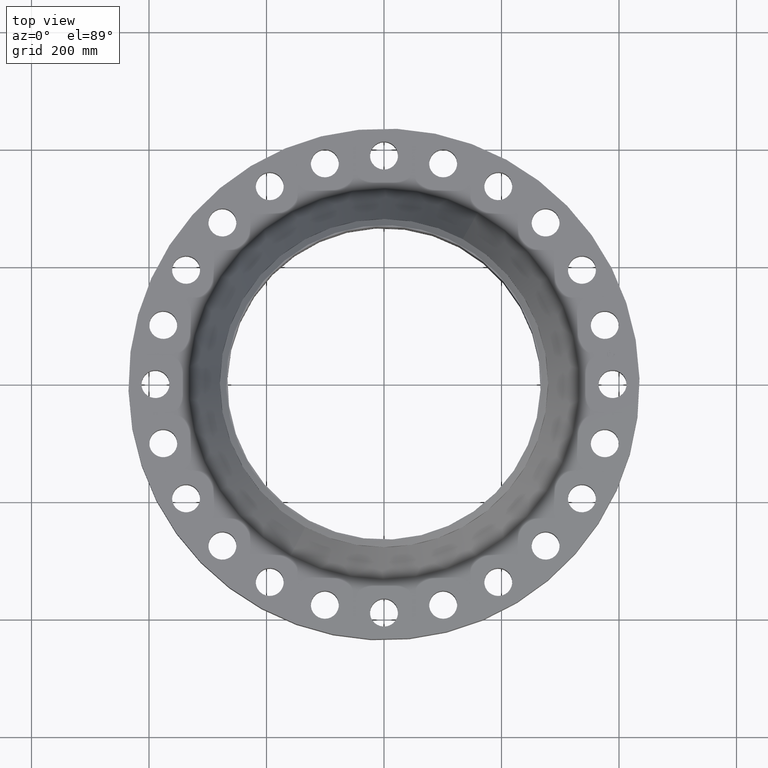
[diagram: clean part render]
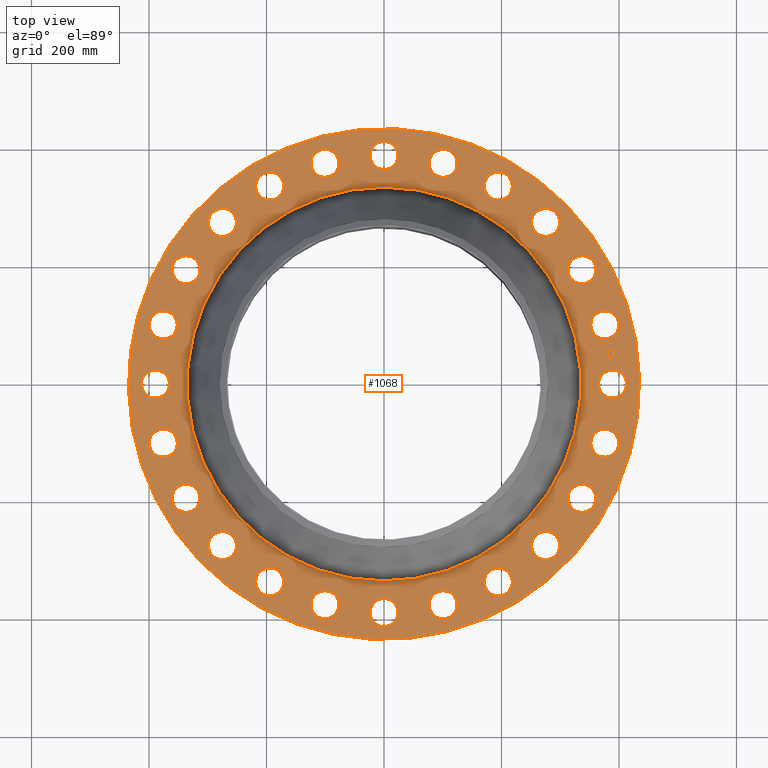
[diagram: same view with one face highlighted and labeled with its STEP entity id]
A machine part, top view. The second image highlights one B-rep face of the part: STEP entity #1068.
In plain terms, the highlighted planar face has unit normal (0, 0, -1).
Its self-contained STEP definition (entity closure, byte-faithful):
#107=AXIS2_PLACEMENT_3D('Circle Axis2P3D',#105,#106,$) ;
#594=AXIS2_PLACEMENT_3D('Plane Axis2P3D',#591,#592,#593) ;
#598=AXIS2_PLACEMENT_3D('Circle Axis2P3D',#596,#597,$) ;
#607=AXIS2_PLACEMENT_3D('Circle Axis2P3D',#605,#606,$) ;
#620=AXIS2_PLACEMENT_3D('Circle Axis2P3D',#618,#619,$) ;
#629=AXIS2_PLACEMENT_3D('Circle Axis2P3D',#627,#628,$) ;
#638=AXIS2_PLACEMENT_3D('Circle Axis2P3D',#636,#637,$) ;
#647=AXIS2_PLACEMENT_3D('Circle Axis2P3D',#645,#646,$) ;
#656=AXIS2_PLACEMENT_3D('Circle Axis2P3D',#654,#655,$) ;
#665=AXIS2_PLACEMENT_3D('Circle Axis2P3D',#663,#664,$) ;
#674=AXIS2_PLACEMENT_3D('Circle Axis2P3D',#672,#673,$) ;
#683=AXIS2_PLACEMENT_3D('Circle Axis2P3D',#681,#682,$) ;
#692=AXIS2_PLACEMENT_3D('Circle Axis2P3D',#690,#691,$) ;
#701=AXIS2_PLACEMENT_3D('Circle Axis2P3D',#699,#700,$) ;
#710=AXIS2_PLACEMENT_3D('Circle Axis2P3D',#708,#709,$) ;
#719=AXIS2_PLACEMENT_3D('Circle Axis2P3D',#717,#718,$) ;
#728=AXIS2_PLACEMENT_3D('Circle Axis2P3D',#726,#727,$) ;
#737=AXIS2_PLACEMENT_3D('Circle Axis2P3D',#735,#736,$) ;
#746=AXIS2_PLACEMENT_3D('Circle Axis2P3D',#744,#745,$) ;
#755=AXIS2_PLACEMENT_3D('Circle Axis2P3D',#753,#754,$) ;
#764=AXIS2_PLACEMENT_3D('Circle Axis2P3D',#762,#763,$) ;
#773=AXIS2_PLACEMENT_3D('Circle Axis2P3D',#771,#772,$) ;
#782=AXIS2_PLACEMENT_3D('Circle Axis2P3D',#780,#781,$) ;
#791=AXIS2_PLACEMENT_3D('Circle Axis2P3D',#789,#790,$) ;
#800=AXIS2_PLACEMENT_3D('Circle Axis2P3D',#798,#799,$) ;
#809=AXIS2_PLACEMENT_3D('Circle Axis2P3D',#807,#808,$) ;
#818=AXIS2_PLACEMENT_3D('Circle Axis2P3D',#816,#817,$) ;
#827=AXIS2_PLACEMENT_3D('Circle Axis2P3D',#825,#826,$) ;
#836=AXIS2_PLACEMENT_3D('Circle Axis2P3D',#834,#835,$) ;
#845=AXIS2_PLACEMENT_3D('Circle Axis2P3D',#843,#844,$) ;
#854=AXIS2_PLACEMENT_3D('Circle Axis2P3D',#852,#853,$) ;
#863=AXIS2_PLACEMENT_3D('Circle Axis2P3D',#861,#862,$) ;
#872=AXIS2_PLACEMENT_3D('Circle Axis2P3D',#870,#871,$) ;
#881=AXIS2_PLACEMENT_3D('Circle Axis2P3D',#879,#880,$) ;
#890=AXIS2_PLACEMENT_3D('Circle Axis2P3D',#888,#889,$) ;
#899=AXIS2_PLACEMENT_3D('Circle Axis2P3D',#897,#898,$) ;
#908=AXIS2_PLACEMENT_3D('Circle Axis2P3D',#906,#907,$) ;
#917=AXIS2_PLACEMENT_3D('Circle Axis2P3D',#915,#916,$) ;
#926=AXIS2_PLACEMENT_3D('Circle Axis2P3D',#924,#925,$) ;
#935=AXIS2_PLACEMENT_3D('Circle Axis2P3D',#933,#934,$) ;
#944=AXIS2_PLACEMENT_3D('Circle Axis2P3D',#942,#943,$) ;
#953=AXIS2_PLACEMENT_3D('Circle Axis2P3D',#951,#952,$) ;
#962=AXIS2_PLACEMENT_3D('Circle Axis2P3D',#960,#961,$) ;
#971=AXIS2_PLACEMENT_3D('Circle Axis2P3D',#969,#970,$) ;
#980=AXIS2_PLACEMENT_3D('Circle Axis2P3D',#978,#979,$) ;
#989=AXIS2_PLACEMENT_3D('Circle Axis2P3D',#987,#988,$) ;
#998=AXIS2_PLACEMENT_3D('Circle Axis2P3D',#996,#997,$) ;
#1007=AXIS2_PLACEMENT_3D('Circle Axis2P3D',#1005,#1006,$) ;
#1016=AXIS2_PLACEMENT_3D('Circle Axis2P3D',#1014,#1015,$) ;
#1025=AXIS2_PLACEMENT_3D('Circle Axis2P3D',#1023,#1024,$) ;
#1034=AXIS2_PLACEMENT_3D('Circle Axis2P3D',#1032,#1033,$) ;
#1043=AXIS2_PLACEMENT_3D('Circle Axis2P3D',#1041,#1042,$) ;
#1052=AXIS2_PLACEMENT_3D('Circle Axis2P3D',#1050,#1051,$) ;
#1061=AXIS2_PLACEMENT_3D('Circle Axis2P3D',#1059,#1060,$) ;
#46=CARTESIAN_POINT('Vertex',(14.4900723919,0.45066000629,3.75)) ;
#60=CARTESIAN_POINT('Vertex',(16.1399276082,-0.450660006329,3.75000000002)) ;
#64=CARTESIAN_POINT('Control Point',(14.4900723919,0.45066000629,3.75000000002)) ;
#65=CARTESIAN_POINT('Control Point',(14.5608619002,0.58023933197,3.75000000002)) ;
#66=CARTESIAN_POINT('Control Point',(14.6570942495,0.695919170208,3.75000000002)) ;
#67=CARTESIAN_POINT('Control Point',(14.7751509021,0.791016067752,3.75000000002)) ;
#68=CARTESIAN_POINT('Control Point',(15.0421904572,0.92979587949,3.75000000001)) ;
#69=CARTESIAN_POINT('Control Point',(15.3418795469,0.957298782026,3.75000000001)) ;
#70=CARTESIAN_POINT('Control Point',(15.4926018676,0.941063783582,3.75000000001)) ;
#71=CARTESIAN_POINT('Control Point',(15.7795594938,0.850370449281,3.75000000001)) ;
#72=CARTESIAN_POINT('Control Point',(16.0109191703,0.657905750577,3.75000000001)) ;
#73=CARTESIAN_POINT('Control Point',(16.1060160679,0.539849098048,3.75000000001)) ;
#74=CARTESIAN_POINT('Control Point',(16.2447958796,0.272809542925,3.75)) ;
#75=CARTESIAN_POINT('Control Point',(16.2722987821,-0.0268795467977,3.75)) ;
#76=CARTESIAN_POINT('Control Point',(16.2560637837,-0.177601867488,3.75)) ;
#77=CARTESIAN_POINT('Control Point',(16.2107171165,-0.32108068061,3.75)) ;
#78=CARTESIAN_POINT('Control Point',(16.1399276083,-0.45066000629,3.75)) ;
#105=CARTESIAN_POINT('Axis2P3D Location',(15.3150000001,0.,3.75)) ;
#591=CARTESIAN_POINT('Axis2P3D Location',(0.,17.1250000001,3.75000000002)) ;
#596=CARTESIAN_POINT('Axis2P3D Location',(1.28188623321E-011,-2.32744707147E-012,3.75000000002)) ;
#600=CARTESIAN_POINT('Vertex',(8.21016234865,15.0286013725,3.74999999999)) ;
#602=CARTESIAN_POINT('Vertex',(-8.21016234865,-15.0286013725,3.74999999999)) ;
#605=CARTESIAN_POINT('Axis2P3D Location',(-1.28188623321E-011,1.16640905158E-011,3.75000000002)) ;
#618=CARTESIAN_POINT('Axis2P3D Location',(-1.28099106126E-011,1.16685663756E-011,3.75000000002)) ;
#622=CARTESIAN_POINT('Vertex',(-6.32454671418,-11.5770051058,3.75000000002)) ;
#624=CARTESIAN_POINT('Vertex',(6.32454671423,11.5770051058,3.75000000002)) ;
#627=CARTESIAN_POINT('Axis2P3D Location',(1.28099106126E-011,-2.33192293122E-012,3.75000000002)) ;
#636=CARTESIAN_POINT('Axis2P3D Location',(14.7931540297,-3.96381367577,3.75000000002)) ;
#640=CARTESIAN_POINT('Vertex',(15.4733335187,-4.61262479054,3.75000000002)) ;
#642=CARTESIAN_POINT('Vertex',(14.1129745406,-3.31500256098,3.75)) ;
#645=CARTESIAN_POINT('Axis2P3D Location',(14.7931540297,-3.96381367573,3.75000000002)) ;
#654=CARTESIAN_POINT('Axis2P3D Location',(13.263179059,-7.65750000004,3.75000000002)) ;
#658=CARTESIAN_POINT('Vertex',(13.7522573208,-8.46024681804,3.75)) ;
#660=CARTESIAN_POINT('Vertex',(12.7741007972,-6.85475318202,3.75)) ;
#663=CARTESIAN_POINT('Axis2P3D Location',(13.263179059,-7.65750000004,3.75000000002)) ;
#672=CARTESIAN_POINT('Axis2P3D Location',(10.8293403539,-10.8293403539,3.75000000002)) ;
#676=CARTESIAN_POINT('Vertex',(11.0939875132,-11.7313170061,3.75000000002)) ;
#678=CARTESIAN_POINT('Vertex',(10.5646931946,-9.92736370171,3.75)) ;
#681=CARTESIAN_POINT('Axis2P3D Location',(10.8293403539,-10.8293403539,3.75000000002)) ;
#690=CARTESIAN_POINT('Axis2P3D Location',(7.6575,-13.263179059,3.75000000002)) ;
#694=CARTESIAN_POINT('Vertex',(7.6796807902,-14.2029173271,3.75)) ;
#696=CARTESIAN_POINT('Vertex',(7.63531920986,-12.3234407909,3.75)) ;
#699=CARTESIAN_POINT('Axis2P3D Location',(7.6575,-13.263179059,3.75000000002)) ;
#708=CARTESIAN_POINT('Axis2P3D Location',(3.96381367582,-14.7931540297,3.75000000002)) ;
#712=CARTESIAN_POINT('Vertex',(3.74201651259,-15.7066123038,3.75000000002)) ;
#714=CARTESIAN_POINT('Vertex',(4.18561083888,-13.8796957556,3.75)) ;
#717=CARTESIAN_POINT('Axis2P3D Location',(3.96381367574,-14.7931540297,3.75000000002)) ;
#726=CARTESIAN_POINT('Axis2P3D Location',(4.36655086542E-011,-15.3150000001,3.75000000002)) ;
#730=CARTESIAN_POINT('Vertex',(-0.450660006297,-16.1399276083,3.75000000002)) ;
#732=CARTESIAN_POINT('Vertex',(0.45066000629,-14.4900723919,3.75)) ;
#735=CARTESIAN_POINT('Axis2P3D Location',(-1.281158906E-011,-15.3150000001,3.75000000002)) ;
#744=CARTESIAN_POINT('Axis2P3D Location',(-3.96381367574,-14.7931540297,3.75000000002)) ;
#748=CARTESIAN_POINT('Vertex',(-4.61262479058,-15.4733335187,3.75000000002)) ;
#750=CARTESIAN_POINT('Vertex',(-3.31500256098,-14.1129745406,3.75)) ;
#753=CARTESIAN_POINT('Axis2P3D Location',(-3.96381367577,-14.7931540297,3.75000000002)) ;
#762=CARTESIAN_POINT('Axis2P3D Location',(-7.65750000004,-13.263179059,3.75000000002)) ;
#766=CARTESIAN_POINT('Vertex',(-8.46024681804,-13.7522573208,3.75)) ;
#768=CARTESIAN_POINT('Vertex',(-6.85475318202,-12.7741007972,3.75)) ;
#771=CARTESIAN_POINT('Axis2P3D Location',(-7.65750000004,-13.263179059,3.75000000002)) ;
#780=CARTESIAN_POINT('Axis2P3D Location',(-10.8293403539,-10.8293403539,3.75000000002)) ;
#784=CARTESIAN_POINT('Vertex',(-11.7313170061,-11.0939875132,3.75000000002)) ;
#786=CARTESIAN_POINT('Vertex',(-9.92736370171,-10.5646931946,3.75)) ;
#789=CARTESIAN_POINT('Axis2P3D Location',(-10.8293403539,-10.8293403539,3.75000000002)) ;
#798=CARTESIAN_POINT('Axis2P3D Location',(-13.263179059,-7.65750000004,3.75000000002)) ;
#802=CARTESIAN_POINT('Vertex',(-14.2029173271,-7.6796807902,3.75)) ;
#804=CARTESIAN_POINT('Vertex',(-12.3234407909,-7.63531920986,3.75)) ;
#807=CARTESIAN_POINT('Axis2P3D Location',(-13.263179059,-7.65750000004,3.75000000002)) ;
#816=CARTESIAN_POINT('Axis2P3D Location',(-14.7931540297,-3.96381367573,3.75000000002)) ;
#820=CARTESIAN_POINT('Vertex',(-15.7066123037,-3.74201651262,3.75000000002)) ;
#822=CARTESIAN_POINT('Vertex',(-13.8796957556,-4.18561083888,3.75)) ;
#825=CARTESIAN_POINT('Axis2P3D Location',(-14.7931540297,-3.9638136758,3.75000000002)) ;
#834=CARTESIAN_POINT('Axis2P3D Location',(-15.3150000001,4.13345648173E-011,3.75000000002)) ;
#838=CARTESIAN_POINT('Vertex',(-16.1399276082,0.450660006338,3.75000000002)) ;
#840=CARTESIAN_POINT('Vertex',(-14.4900723919,-0.45066000629,3.75)) ;
#843=CARTESIAN_POINT('Axis2P3D Location',(-15.3150000001,-1.51418335438E-011,3.75000000002)) ;
#852=CARTESIAN_POINT('Axis2P3D Location',(-14.7931540297,3.96381367578,3.75000000002)) ;
#856=CARTESIAN_POINT('Vertex',(-15.4733335187,4.61262479055,3.75000000002)) ;
#858=CARTESIAN_POINT('Vertex',(-14.1129745406,3.31500256098,3.75)) ;
#861=CARTESIAN_POINT('Axis2P3D Location',(-14.7931540297,3.96381367574,3.75000000002)) ;
#870=CARTESIAN_POINT('Axis2P3D Location',(-13.263179059,7.6575,3.75000000002)) ;
#874=CARTESIAN_POINT('Vertex',(-13.7522573208,8.46024681804,3.75)) ;
#876=CARTESIAN_POINT('Vertex',(-12.7741007972,6.85475318202,3.75)) ;
#879=CARTESIAN_POINT('Axis2P3D Location',(-13.263179059,7.65750000003,3.75000000002)) ;
#888=CARTESIAN_POINT('Axis2P3D Location',(-10.8293403539,10.8293403539,3.75000000002)) ;
#892=CARTESIAN_POINT('Vertex',(-11.0939875132,11.7313170061,3.75000000002)) ;
#894=CARTESIAN_POINT('Vertex',(-10.5646931946,9.92736370171,3.75)) ;
#897=CARTESIAN_POINT('Axis2P3D Location',(-10.8293403539,10.8293403539,3.75000000002)) ;
#906=CARTESIAN_POINT('Axis2P3D Location',(-7.6575,13.263179059,3.75000000002)) ;
#910=CARTESIAN_POINT('Vertex',(-7.6796807902,14.2029173271,3.75)) ;
#912=CARTESIAN_POINT('Vertex',(-7.63531920986,12.3234407909,3.75)) ;
#915=CARTESIAN_POINT('Axis2P3D Location',(-7.6575,13.263179059,3.75000000002)) ;
#924=CARTESIAN_POINT('Axis2P3D Location',(-3.96381367581,14.7931540297,3.75000000002)) ;
#928=CARTESIAN_POINT('Vertex',(-3.74201651259,15.7066123038,3.75000000002)) ;
#930=CARTESIAN_POINT('Vertex',(-4.18561083888,13.8796957556,3.75)) ;
#933=CARTESIAN_POINT('Axis2P3D Location',(-3.96381367574,14.7931540297,3.75000000002)) ;
#942=CARTESIAN_POINT('Axis2P3D Location',(-4.36655086542E-011,15.3150000001,3.75000000002)) ;
#946=CARTESIAN_POINT('Vertex',(0.450660006297,16.1399276083,3.75000000002)) ;
#948=CARTESIAN_POINT('Vertex',(-0.45066000629,14.4900723919,3.75)) ;
#951=CARTESIAN_POINT('Axis2P3D Location',(1.281158906E-011,15.3150000001,3.75000000002)) ;
#960=CARTESIAN_POINT('Axis2P3D Location',(3.96381367574,14.7931540297,3.75000000002)) ;
#964=CARTESIAN_POINT('Vertex',(4.61262479058,15.4733335188,3.75000000002)) ;
#966=CARTESIAN_POINT('Vertex',(3.31500256098,14.1129745406,3.75)) ;
#969=CARTESIAN_POINT('Axis2P3D Location',(3.96381367577,14.7931540297,3.75000000002)) ;
#978=CARTESIAN_POINT('Axis2P3D Location',(7.65750000004,13.263179059,3.75000000002)) ;
#982=CARTESIAN_POINT('Vertex',(8.46024681804,13.7522573208,3.75)) ;
#984=CARTESIAN_POINT('Vertex',(6.85475318202,12.7741007972,3.75)) ;
#987=CARTESIAN_POINT('Axis2P3D Location',(7.65750000004,13.263179059,3.75000000002)) ;
#996=CARTESIAN_POINT('Axis2P3D Location',(10.8293403539,10.8293403539,3.75000000002)) ;
#1000=CARTESIAN_POINT('Vertex',(11.7313170061,11.0939875132,3.75000000002)) ;
#1002=CARTESIAN_POINT('Vertex',(9.92736370171,10.5646931946,3.75)) ;
#1005=CARTESIAN_POINT('Axis2P3D Location',(10.8293403539,10.8293403539,3.75000000002)) ;
#1014=CARTESIAN_POINT('Axis2P3D Location',(13.263179059,7.65750000004,3.75000000002)) ;
#1018=CARTESIAN_POINT('Vertex',(14.2029173271,7.6796807902,3.75)) ;
#1020=CARTESIAN_POINT('Vertex',(12.3234407909,7.63531920986,3.75)) ;
#1023=CARTESIAN_POINT('Axis2P3D Location',(13.263179059,7.65750000004,3.75000000002)) ;
#1032=CARTESIAN_POINT('Axis2P3D Location',(14.7931540297,3.96381367574,3.75000000002)) ;
#1036=CARTESIAN_POINT('Vertex',(15.7066123037,3.74201651263,3.75000000002)) ;
#1038=CARTESIAN_POINT('Vertex',(13.8796957556,4.18561083888,3.75)) ;
#1041=CARTESIAN_POINT('Axis2P3D Location',(14.7931540297,3.96381367581,3.75000000002)) ;
#1050=CARTESIAN_POINT('Axis2P3D Location',(15.183978052,1.99900863388,3.75000000002)) ;
#1054=CARTESIAN_POINT('Vertex',(15.1516728194,2.24439123708,3.75000000002)) ;
#1056=CARTESIAN_POINT('Vertex',(15.2162832846,1.75362603068,3.75000000002)) ;
#1059=CARTESIAN_POINT('Axis2P3D Location',(15.183978052,1.99900863388,3.75000000002)) ;
#106=DIRECTION('Axis2P3D Direction',(0.,-0.,-0.0393700787402)) ;
#592=DIRECTION('Axis2P3D Direction',(0.,0.,-0.0393700787402)) ;
#593=DIRECTION('Axis2P3D XDirection',(0.0393700787402,0.,0.)) ;
#597=DIRECTION('Axis2P3D Direction',(0.,0.,-0.0393700787402)) ;
#606=DIRECTION('Axis2P3D Direction',(0.,0.,-0.0393700787402)) ;
#619=DIRECTION('Axis2P3D Direction',(0.,0.,-0.0393700787402)) ;
#628=DIRECTION('Axis2P3D Direction',(0.,0.,-0.0393700787402)) ;
#637=DIRECTION('Axis2P3D Direction',(0.,0.,-0.0393700787402)) ;
#646=DIRECTION('Axis2P3D Direction',(0.,0.,-0.0393700787402)) ;
#655=DIRECTION('Axis2P3D Direction',(0.,0.,-0.0393700787402)) ;
#664=DIRECTION('Axis2P3D Direction',(0.,0.,-0.0393700787402)) ;
#673=DIRECTION('Axis2P3D Direction',(0.,0.,-0.0393700787402)) ;
#682=DIRECTION('Axis2P3D Direction',(0.,0.,-0.0393700787402)) ;
#691=DIRECTION('Axis2P3D Direction',(0.,0.,-0.0393700787402)) ;
#700=DIRECTION('Axis2P3D Direction',(0.,0.,-0.0393700787402)) ;
#709=DIRECTION('Axis2P3D Direction',(0.,0.,-0.0393700787402)) ;
#718=DIRECTION('Axis2P3D Direction',(0.,0.,-0.0393700787402)) ;
#727=DIRECTION('Axis2P3D Direction',(0.,0.,-0.0393700787402)) ;
#736=DIRECTION('Axis2P3D Direction',(0.,0.,-0.0393700787402)) ;
#745=DIRECTION('Axis2P3D Direction',(0.,0.,-0.0393700787402)) ;
#754=DIRECTION('Axis2P3D Direction',(0.,0.,-0.0393700787402)) ;
#763=DIRECTION('Axis2P3D Direction',(0.,0.,-0.0393700787402)) ;
#772=DIRECTION('Axis2P3D Direction',(0.,0.,-0.0393700787402)) ;
#781=DIRECTION('Axis2P3D Direction',(0.,0.,-0.0393700787402)) ;
#790=DIRECTION('Axis2P3D Direction',(0.,0.,-0.0393700787402)) ;
#799=DIRECTION('Axis2P3D Direction',(0.,0.,-0.0393700787402)) ;
#808=DIRECTION('Axis2P3D Direction',(0.,0.,-0.0393700787402)) ;
#817=DIRECTION('Axis2P3D Direction',(0.,0.,-0.0393700787402)) ;
#826=DIRECTION('Axis2P3D Direction',(0.,0.,-0.0393700787402)) ;
#835=DIRECTION('Axis2P3D Direction',(0.,0.,-0.0393700787402)) ;
#844=DIRECTION('Axis2P3D Direction',(0.,0.,-0.0393700787402)) ;
#853=DIRECTION('Axis2P3D Direction',(0.,0.,-0.0393700787402)) ;
#862=DIRECTION('Axis2P3D Direction',(0.,0.,-0.0393700787402)) ;
#871=DIRECTION('Axis2P3D Direction',(0.,0.,-0.0393700787402)) ;
#880=DIRECTION('Axis2P3D Direction',(0.,0.,-0.0393700787402)) ;
#889=DIRECTION('Axis2P3D Direction',(0.,0.,-0.0393700787402)) ;
#898=DIRECTION('Axis2P3D Direction',(0.,0.,-0.0393700787402)) ;
#907=DIRECTION('Axis2P3D Direction',(0.,0.,-0.0393700787402)) ;
#916=DIRECTION('Axis2P3D Direction',(0.,0.,-0.0393700787402)) ;
#925=DIRECTION('Axis2P3D Direction',(0.,0.,-0.0393700787402)) ;
#934=DIRECTION('Axis2P3D Direction',(0.,0.,-0.0393700787402)) ;
#943=DIRECTION('Axis2P3D Direction',(0.,0.,-0.0393700787402)) ;
#952=DIRECTION('Axis2P3D Direction',(0.,0.,-0.0393700787402)) ;
#961=DIRECTION('Axis2P3D Direction',(0.,0.,-0.0393700787402)) ;
#970=DIRECTION('Axis2P3D Direction',(0.,0.,-0.0393700787402)) ;
#979=DIRECTION('Axis2P3D Direction',(0.,0.,-0.0393700787402)) ;
#988=DIRECTION('Axis2P3D Direction',(0.,0.,-0.0393700787402)) ;
#997=DIRECTION('Axis2P3D Direction',(0.,0.,-0.0393700787402)) ;
#1006=DIRECTION('Axis2P3D Direction',(0.,0.,-0.0393700787402)) ;
#1015=DIRECTION('Axis2P3D Direction',(0.,0.,-0.0393700787402)) ;
#1024=DIRECTION('Axis2P3D Direction',(0.,0.,-0.0393700787402)) ;
#1033=DIRECTION('Axis2P3D Direction',(0.,0.,-0.0393700787402)) ;
#1042=DIRECTION('Axis2P3D Direction',(0.,0.,-0.0393700787402)) ;
#1051=DIRECTION('Axis2P3D Direction',(0.,0.,-0.0393700787402)) ;
#1060=DIRECTION('Axis2P3D Direction',(0.,0.,-0.0393700787402)) ;
#611=ORIENTED_EDGE('',*,*,#604,.F.) ;
#612=ORIENTED_EDGE('',*,*,#609,.F.) ;
#615=ORIENTED_EDGE('',*,*,#79,.T.) ;
#616=ORIENTED_EDGE('',*,*,#109,.T.) ;
#633=ORIENTED_EDGE('',*,*,#626,.T.) ;
#634=ORIENTED_EDGE('',*,*,#631,.T.) ;
#651=ORIENTED_EDGE('',*,*,#644,.T.) ;
#652=ORIENTED_EDGE('',*,*,#649,.T.) ;
#669=ORIENTED_EDGE('',*,*,#662,.T.) ;
#670=ORIENTED_EDGE('',*,*,#667,.T.) ;
#687=ORIENTED_EDGE('',*,*,#680,.T.) ;
#688=ORIENTED_EDGE('',*,*,#685,.T.) ;
#705=ORIENTED_EDGE('',*,*,#698,.T.) ;
#706=ORIENTED_EDGE('',*,*,#703,.T.) ;
#723=ORIENTED_EDGE('',*,*,#716,.T.) ;
#724=ORIENTED_EDGE('',*,*,#721,.T.) ;
#741=ORIENTED_EDGE('',*,*,#734,.T.) ;
#742=ORIENTED_EDGE('',*,*,#739,.T.) ;
#759=ORIENTED_EDGE('',*,*,#752,.T.) ;
#760=ORIENTED_EDGE('',*,*,#757,.T.) ;
#777=ORIENTED_EDGE('',*,*,#770,.T.) ;
#778=ORIENTED_EDGE('',*,*,#775,.T.) ;
#795=ORIENTED_EDGE('',*,*,#788,.T.) ;
#796=ORIENTED_EDGE('',*,*,#793,.T.) ;
#813=ORIENTED_EDGE('',*,*,#806,.T.) ;
#814=ORIENTED_EDGE('',*,*,#811,.T.) ;
#831=ORIENTED_EDGE('',*,*,#824,.T.) ;
#832=ORIENTED_EDGE('',*,*,#829,.T.) ;
#849=ORIENTED_EDGE('',*,*,#842,.T.) ;
#850=ORIENTED_EDGE('',*,*,#847,.T.) ;
#867=ORIENTED_EDGE('',*,*,#860,.T.) ;
#868=ORIENTED_EDGE('',*,*,#865,.T.) ;
#885=ORIENTED_EDGE('',*,*,#878,.T.) ;
#886=ORIENTED_EDGE('',*,*,#883,.T.) ;
#903=ORIENTED_EDGE('',*,*,#896,.T.) ;
#904=ORIENTED_EDGE('',*,*,#901,.T.) ;
#921=ORIENTED_EDGE('',*,*,#914,.T.) ;
#922=ORIENTED_EDGE('',*,*,#919,.T.) ;
#939=ORIENTED_EDGE('',*,*,#932,.T.) ;
#940=ORIENTED_EDGE('',*,*,#937,.T.) ;
#957=ORIENTED_EDGE('',*,*,#950,.T.) ;
#958=ORIENTED_EDGE('',*,*,#955,.T.) ;
#975=ORIENTED_EDGE('',*,*,#968,.T.) ;
#976=ORIENTED_EDGE('',*,*,#973,.T.) ;
#993=ORIENTED_EDGE('',*,*,#986,.T.) ;
#994=ORIENTED_EDGE('',*,*,#991,.T.) ;
#1011=ORIENTED_EDGE('',*,*,#1004,.T.) ;
#1012=ORIENTED_EDGE('',*,*,#1009,.T.) ;
#1029=ORIENTED_EDGE('',*,*,#1022,.T.) ;
#1030=ORIENTED_EDGE('',*,*,#1027,.T.) ;
#1047=ORIENTED_EDGE('',*,*,#1040,.T.) ;
#1048=ORIENTED_EDGE('',*,*,#1045,.T.) ;
#1065=ORIENTED_EDGE('',*,*,#1058,.T.) ;
#1066=ORIENTED_EDGE('',*,*,#1063,.T.) ;
#617=FACE_BOUND('',#614,.T.) ;
#635=FACE_BOUND('',#632,.T.) ;
#653=FACE_BOUND('',#650,.T.) ;
#671=FACE_BOUND('',#668,.T.) ;
#689=FACE_BOUND('',#686,.T.) ;
#707=FACE_BOUND('',#704,.T.) ;
#725=FACE_BOUND('',#722,.T.) ;
#743=FACE_BOUND('',#740,.T.) ;
#761=FACE_BOUND('',#758,.T.) ;
#779=FACE_BOUND('',#776,.T.) ;
#797=FACE_BOUND('',#794,.T.) ;
#815=FACE_BOUND('',#812,.T.) ;
#833=FACE_BOUND('',#830,.T.) ;
#851=FACE_BOUND('',#848,.T.) ;
#869=FACE_BOUND('',#866,.T.) ;
#887=FACE_BOUND('',#884,.T.) ;
#905=FACE_BOUND('',#902,.T.) ;
#923=FACE_BOUND('',#920,.T.) ;
#941=FACE_BOUND('',#938,.T.) ;
#959=FACE_BOUND('',#956,.T.) ;
#977=FACE_BOUND('',#974,.T.) ;
#995=FACE_BOUND('',#992,.T.) ;
#1013=FACE_BOUND('',#1010,.T.) ;
#1031=FACE_BOUND('',#1028,.T.) ;
#1049=FACE_BOUND('',#1046,.T.) ;
#1067=FACE_BOUND('',#1064,.T.) ;
#1068=ADVANCED_FACE('PartBody',(#613,#617,#635,#653,#671,#689,#707,#725,#743,#761,#779,#797,#815,#833,#851,#869,#887,#905,#923,#941,#959,#977,#995,#1013,#1031,#1049,#1067),#595,.F.) ;
#63=B_SPLINE_CURVE_WITH_KNOTS('',5,(#64,#65,#66,#67,#68,#69,#70,#71,#72,#73,#74,#75,#76,#77,#78),.UNSPECIFIED.,.F.,.U.,(6,3,3,3,6),(-37.5043330987,-18.7521665494,0.,18.7521665494,37.5043330987),.UNSPECIFIED.) ;
#108=CIRCLE('generated circle',#107,0.940000000004) ;
#599=CIRCLE('generated circle',#598,17.1250000001) ;
#608=CIRCLE('generated circle',#607,17.1250000001) ;
#621=CIRCLE('generated circle',#620,13.1919270146) ;
#630=CIRCLE('generated circle',#629,13.1919270146) ;
#639=CIRCLE('generated circle',#638,0.939999999996) ;
#648=CIRCLE('generated circle',#647,0.939999999996) ;
#657=CIRCLE('generated circle',#656,0.939999999987) ;
#666=CIRCLE('generated circle',#665,0.939999999987) ;
#675=CIRCLE('generated circle',#674,0.939999999994) ;
#684=CIRCLE('generated circle',#683,0.939999999994) ;
#693=CIRCLE('generated circle',#692,0.940000000005) ;
#702=CIRCLE('generated circle',#701,0.940000000005) ;
#711=CIRCLE('generated circle',#710,0.940000000023) ;
#720=CIRCLE('generated circle',#719,0.940000000023) ;
#729=CIRCLE('generated circle',#728,0.940000000015) ;
#738=CIRCLE('generated circle',#737,0.940000000015) ;
#747=CIRCLE('generated circle',#746,0.940000000021) ;
#756=CIRCLE('generated circle',#755,0.940000000021) ;
#765=CIRCLE('generated circle',#764,0.939999999999) ;
#774=CIRCLE('generated circle',#773,0.939999999999) ;
#783=CIRCLE('generated circle',#782,0.939999999994) ;
#792=CIRCLE('generated circle',#791,0.939999999994) ;
#801=CIRCLE('generated circle',#800,0.940000000005) ;
#810=CIRCLE('generated circle',#809,0.940000000005) ;
#819=CIRCLE('generated circle',#818,0.939999999979) ;
#828=CIRCLE('generated circle',#827,0.939999999979) ;
#837=CIRCLE('generated circle',#836,0.939999999983) ;
#846=CIRCLE('generated circle',#845,0.939999999983) ;
#855=CIRCLE('generated circle',#854,0.939999999996) ;
#864=CIRCLE('generated circle',#863,0.939999999996) ;
#873=CIRCLE('generated circle',#872,0.940000000018) ;
#882=CIRCLE('generated circle',#881,0.940000000018) ;
#891=CIRCLE('generated circle',#890,0.939999999994) ;
#900=CIRCLE('generated circle',#899,0.939999999994) ;
#909=CIRCLE('generated circle',#908,0.940000000005) ;
#918=CIRCLE('generated circle',#917,0.940000000005) ;
#927=CIRCLE('generated circle',#926,0.940000000023) ;
#936=CIRCLE('generated circle',#935,0.940000000023) ;
#945=CIRCLE('generated circle',#944,0.940000000015) ;
#954=CIRCLE('generated circle',#953,0.940000000015) ;
#963=CIRCLE('generated circle',#962,0.940000000021) ;
#972=CIRCLE('generated circle',#971,0.940000000021) ;
#981=CIRCLE('generated circle',#980,0.939999999999) ;
#990=CIRCLE('generated circle',#989,0.939999999999) ;
#999=CIRCLE('generated circle',#998,0.939999999994) ;
#1008=CIRCLE('generated circle',#1007,0.939999999994) ;
#1017=CIRCLE('generated circle',#1016,0.940000000005) ;
#1026=CIRCLE('generated circle',#1025,0.940000000005) ;
#1035=CIRCLE('generated circle',#1034,0.939999999979) ;
#1044=CIRCLE('generated circle',#1043,0.939999999979) ;
#1053=CIRCLE('generated circle',#1052,0.247500000012) ;
#1062=CIRCLE('generated circle',#1061,0.247500000012) ;
#79=EDGE_CURVE('',#47,#61,#63,.T.) ;
#109=EDGE_CURVE('',#61,#47,#108,.T.) ;
#604=EDGE_CURVE('',#601,#603,#599,.T.) ;
#609=EDGE_CURVE('',#603,#601,#608,.T.) ;
#626=EDGE_CURVE('',#623,#625,#621,.T.) ;
#631=EDGE_CURVE('',#625,#623,#630,.T.) ;
#644=EDGE_CURVE('',#641,#643,#639,.T.) ;
#649=EDGE_CURVE('',#643,#641,#648,.T.) ;
#662=EDGE_CURVE('',#659,#661,#657,.T.) ;
#667=EDGE_CURVE('',#661,#659,#666,.T.) ;
#680=EDGE_CURVE('',#677,#679,#675,.T.) ;
#685=EDGE_CURVE('',#679,#677,#684,.T.) ;
#698=EDGE_CURVE('',#695,#697,#693,.T.) ;
#703=EDGE_CURVE('',#697,#695,#702,.T.) ;
#716=EDGE_CURVE('',#713,#715,#711,.T.) ;
#721=EDGE_CURVE('',#715,#713,#720,.T.) ;
#734=EDGE_CURVE('',#731,#733,#729,.T.) ;
#739=EDGE_CURVE('',#733,#731,#738,.T.) ;
#752=EDGE_CURVE('',#749,#751,#747,.T.) ;
#757=EDGE_CURVE('',#751,#749,#756,.T.) ;
#770=EDGE_CURVE('',#767,#769,#765,.T.) ;
#775=EDGE_CURVE('',#769,#767,#774,.T.) ;
#788=EDGE_CURVE('',#785,#787,#783,.T.) ;
#793=EDGE_CURVE('',#787,#785,#792,.T.) ;
#806=EDGE_CURVE('',#803,#805,#801,.T.) ;
#811=EDGE_CURVE('',#805,#803,#810,.T.) ;
#824=EDGE_CURVE('',#821,#823,#819,.T.) ;
#829=EDGE_CURVE('',#823,#821,#828,.T.) ;
#842=EDGE_CURVE('',#839,#841,#837,.T.) ;
#847=EDGE_CURVE('',#841,#839,#846,.T.) ;
#860=EDGE_CURVE('',#857,#859,#855,.T.) ;
#865=EDGE_CURVE('',#859,#857,#864,.T.) ;
#878=EDGE_CURVE('',#875,#877,#873,.T.) ;
#883=EDGE_CURVE('',#877,#875,#882,.T.) ;
#896=EDGE_CURVE('',#893,#895,#891,.T.) ;
#901=EDGE_CURVE('',#895,#893,#900,.T.) ;
#914=EDGE_CURVE('',#911,#913,#909,.T.) ;
#919=EDGE_CURVE('',#913,#911,#918,.T.) ;
#932=EDGE_CURVE('',#929,#931,#927,.T.) ;
#937=EDGE_CURVE('',#931,#929,#936,.T.) ;
#950=EDGE_CURVE('',#947,#949,#945,.T.) ;
#955=EDGE_CURVE('',#949,#947,#954,.T.) ;
#968=EDGE_CURVE('',#965,#967,#963,.T.) ;
#973=EDGE_CURVE('',#967,#965,#972,.T.) ;
#986=EDGE_CURVE('',#983,#985,#981,.T.) ;
#991=EDGE_CURVE('',#985,#983,#990,.T.) ;
#1004=EDGE_CURVE('',#1001,#1003,#999,.T.) ;
#1009=EDGE_CURVE('',#1003,#1001,#1008,.T.) ;
#1022=EDGE_CURVE('',#1019,#1021,#1017,.T.) ;
#1027=EDGE_CURVE('',#1021,#1019,#1026,.T.) ;
#1040=EDGE_CURVE('',#1037,#1039,#1035,.T.) ;
#1045=EDGE_CURVE('',#1039,#1037,#1044,.T.) ;
#1058=EDGE_CURVE('',#1055,#1057,#1053,.T.) ;
#1063=EDGE_CURVE('',#1057,#1055,#1062,.T.) ;
#610=EDGE_LOOP('',(#611,#612)) ;
#614=EDGE_LOOP('',(#615,#616)) ;
#632=EDGE_LOOP('',(#633,#634)) ;
#650=EDGE_LOOP('',(#651,#652)) ;
#668=EDGE_LOOP('',(#669,#670)) ;
#686=EDGE_LOOP('',(#687,#688)) ;
#704=EDGE_LOOP('',(#705,#706)) ;
#722=EDGE_LOOP('',(#723,#724)) ;
#740=EDGE_LOOP('',(#741,#742)) ;
#758=EDGE_LOOP('',(#759,#760)) ;
#776=EDGE_LOOP('',(#777,#778)) ;
#794=EDGE_LOOP('',(#795,#796)) ;
#812=EDGE_LOOP('',(#813,#814)) ;
#830=EDGE_LOOP('',(#831,#832)) ;
#848=EDGE_LOOP('',(#849,#850)) ;
#866=EDGE_LOOP('',(#867,#868)) ;
#884=EDGE_LOOP('',(#885,#886)) ;
#902=EDGE_LOOP('',(#903,#904)) ;
#920=EDGE_LOOP('',(#921,#922)) ;
#938=EDGE_LOOP('',(#939,#940)) ;
#956=EDGE_LOOP('',(#957,#958)) ;
#974=EDGE_LOOP('',(#975,#976)) ;
#992=EDGE_LOOP('',(#993,#994)) ;
#1010=EDGE_LOOP('',(#1011,#1012)) ;
#1028=EDGE_LOOP('',(#1029,#1030)) ;
#1046=EDGE_LOOP('',(#1047,#1048)) ;
#1064=EDGE_LOOP('',(#1065,#1066)) ;
#613=FACE_OUTER_BOUND('',#610,.T.) ;
#595=PLANE('',#594) ;
#47=VERTEX_POINT('',#46) ;
#61=VERTEX_POINT('',#60) ;
#601=VERTEX_POINT('',#600) ;
#603=VERTEX_POINT('',#602) ;
#623=VERTEX_POINT('',#622) ;
#625=VERTEX_POINT('',#624) ;
#641=VERTEX_POINT('',#640) ;
#643=VERTEX_POINT('',#642) ;
#659=VERTEX_POINT('',#658) ;
#661=VERTEX_POINT('',#660) ;
#677=VERTEX_POINT('',#676) ;
#679=VERTEX_POINT('',#678) ;
#695=VERTEX_POINT('',#694) ;
#697=VERTEX_POINT('',#696) ;
#713=VERTEX_POINT('',#712) ;
#715=VERTEX_POINT('',#714) ;
#731=VERTEX_POINT('',#730) ;
#733=VERTEX_POINT('',#732) ;
#749=VERTEX_POINT('',#748) ;
#751=VERTEX_POINT('',#750) ;
#767=VERTEX_POINT('',#766) ;
#769=VERTEX_POINT('',#768) ;
#785=VERTEX_POINT('',#784) ;
#787=VERTEX_POINT('',#786) ;
#803=VERTEX_POINT('',#802) ;
#805=VERTEX_POINT('',#804) ;
#821=VERTEX_POINT('',#820) ;
#823=VERTEX_POINT('',#822) ;
#839=VERTEX_POINT('',#838) ;
#841=VERTEX_POINT('',#840) ;
#857=VERTEX_POINT('',#856) ;
#859=VERTEX_POINT('',#858) ;
#875=VERTEX_POINT('',#874) ;
#877=VERTEX_POINT('',#876) ;
#893=VERTEX_POINT('',#892) ;
#895=VERTEX_POINT('',#894) ;
#911=VERTEX_POINT('',#910) ;
#913=VERTEX_POINT('',#912) ;
#929=VERTEX_POINT('',#928) ;
#931=VERTEX_POINT('',#930) ;
#947=VERTEX_POINT('',#946) ;
#949=VERTEX_POINT('',#948) ;
#965=VERTEX_POINT('',#964) ;
#967=VERTEX_POINT('',#966) ;
#983=VERTEX_POINT('',#982) ;
#985=VERTEX_POINT('',#984) ;
#1001=VERTEX_POINT('',#1000) ;
#1003=VERTEX_POINT('',#1002) ;
#1019=VERTEX_POINT('',#1018) ;
#1021=VERTEX_POINT('',#1020) ;
#1037=VERTEX_POINT('',#1036) ;
#1039=VERTEX_POINT('',#1038) ;
#1055=VERTEX_POINT('',#1054) ;
#1057=VERTEX_POINT('',#1056) ;